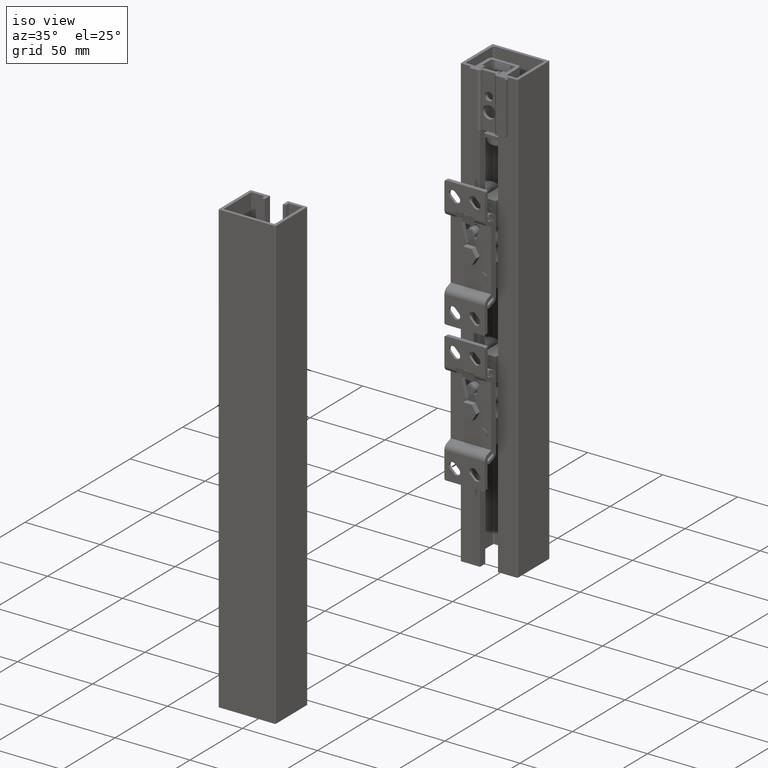
[diagram: clean part render]
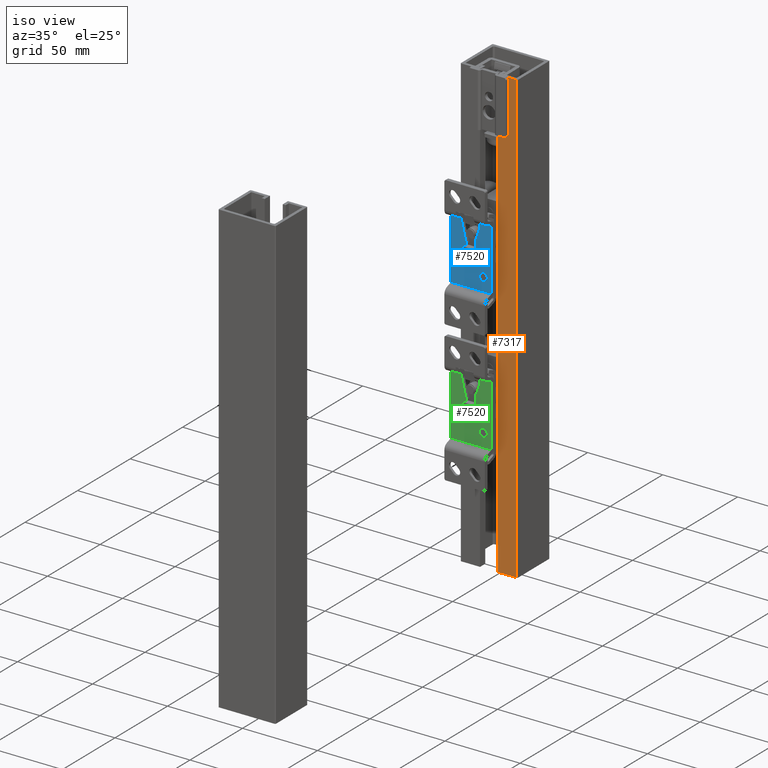
[diagram: same view with three faces highlighted in distinct colors, each labeled with its STEP entity id]
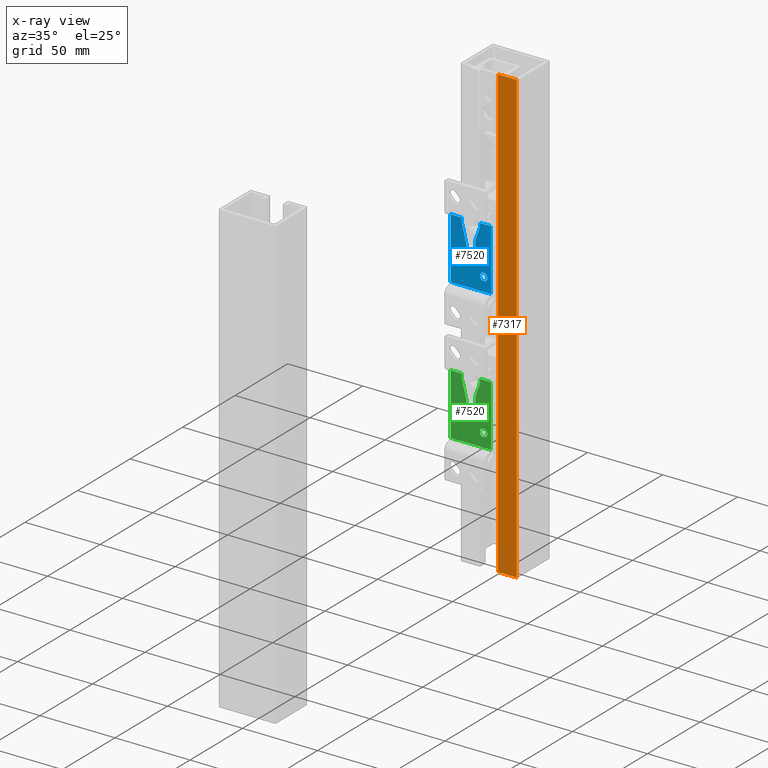
[diagram: x-ray of the same camera — body ghosted, the three highlighted faces saturated]
A machine part, iso view with three faces highlighted in distinct colors.
The next image is the same camera in x-ray (body ghosted, the three faces saturated) — at least one of them is partly hidden behind the body in this view.
Their STEP definitions:

[orange] entity #7317 — the highlighted planar face has unit normal (0, -1, 0).
#301=PLANE('',#7786);
#557=FACE_OUTER_BOUND('',#998,.T.);
#998=EDGE_LOOP('',(#5138,#5139,#5140,#5141));
#1565=LINE('',#10891,#2252);
#1570=LINE('',#10903,#2257);
#1606=LINE('',#10986,#2293);
#1607=LINE('',#10987,#2294);
#2252=VECTOR('',#8590,300.);
#2257=VECTOR('',#8601,12.5);
#2293=VECTOR('',#8677,12.5);
#2294=VECTOR('',#8678,300.);
#3271=VERTEX_POINT('',#10888);
#3272=VERTEX_POINT('',#10890);
#3276=VERTEX_POINT('',#10902);
#3303=VERTEX_POINT('',#10985);
#4004=EDGE_CURVE('',#3271,#3272,#1565,.T.);
#4010=EDGE_CURVE('',#3272,#3276,#1570,.T.);
#4052=EDGE_CURVE('',#3303,#3271,#1606,.T.);
#4053=EDGE_CURVE('',#3276,#3303,#1607,.T.);
#5138=ORIENTED_EDGE('',*,*,#4004,.F.);
#5139=ORIENTED_EDGE('',*,*,#4052,.F.);
#5140=ORIENTED_EDGE('',*,*,#4053,.F.);
#5141=ORIENTED_EDGE('',*,*,#4010,.F.);
#7317=ADVANCED_FACE('',(#557),#301,.T.);
#7786=AXIS2_PLACEMENT_3D('',#10984,#8675,#8676);
#8590=DIRECTION('',(0.,0.,-1.));
#8601=DIRECTION('',(-1.,-5.12410626750073E-16,0.));
#8675=DIRECTION('center_axis',(5.12410626750073E-16,-1.,0.));
#8676=DIRECTION('ref_axis',(1.,5.32907051820075E-16,0.));
#8677=DIRECTION('',(1.,5.12410626750073E-16,0.));
#8678=DIRECTION('',(0.,0.,1.));
#10888=CARTESIAN_POINT('',(18.5,-15.25,150.));
#10890=CARTESIAN_POINT('',(18.5,-15.25,-150.));
#10891=CARTESIAN_POINT('',(18.5,-15.25,0.));
#10902=CARTESIAN_POINT('',(6.00000000000002,-15.25,-150.));
#10903=CARTESIAN_POINT('',(6.00000000000002,-15.25,-150.));
#10984=CARTESIAN_POINT('Origin',(6.00000000000002,-15.25,0.));
#10985=CARTESIAN_POINT('',(6.00000000000002,-15.25,150.));
#10986=CARTESIAN_POINT('',(6.00000000000002,-15.25,150.));
#10987=CARTESIAN_POINT('',(6.00000000000002,-15.25,0.));

[blue] entity #7520 — the highlighted planar face has unit normal (0, 1, -0).
#179=FACE_BOUND('',#1290,.T.);
#415=PLANE('',#8150);
#760=FACE_OUTER_BOUND('',#1289,.T.);
#1289=EDGE_LOOP('',(#5955,#5956,#5957,#5958,#5959,#5960,#5961,#5962,#5963,
#5964,#5965,#5966,#5967,#5968,#5969,#5970));
#1290=EDGE_LOOP('',(#5971));
#1790=LINE('',#11686,#2477);
#1794=LINE('',#11698,#2481);
#1810=LINE('',#11745,#2497);
#1813=LINE('',#11754,#2500);
#1815=LINE('',#11757,#2502);
#1816=LINE('',#11760,#2503);
#1835=LINE('',#11821,#2522);
#1838=LINE('',#11830,#2525);
#1857=LINE('',#11884,#2544);
#1866=LINE('',#11910,#2553);
#1867=LINE('',#11912,#2554);
#2477=VECTOR('',#9427,7.30095089312675);
#2481=VECTOR('',#9439,8.14353635223337);
#2497=VECTOR('',#9477,2.28384925728257);
#2500=VECTOR('',#9486,4.88447187191169);
#2502=VECTOR('',#9490,11.1382606206764);
#2503=VECTOR('',#9493,2.04291373760425);
#2522=VECTOR('',#9558,7.5);
#2525=VECTOR('',#9567,7.5);
#2544=VECTOR('',#9634,40.7987547707417);
#2553=VECTOR('',#9663,27.);
#2554=VECTOR('',#9666,40.7987547707417);
#3036=CIRCLE('',#8015,2.5);
#3062=CIRCLE('',#8068,5.);
#3063=CIRCLE('',#8071,5.);
#3068=CIRCLE('',#8079,5.);
#3073=CIRCLE('',#8086,5.);
#3078=CIRCLE('',#8096,3.);
#3470=VERTEX_POINT('',#11500);
#3533=VERTEX_POINT('',#11676);
#3534=VERTEX_POINT('',#11678);
#3536=VERTEX_POINT('',#11684);
#3537=VERTEX_POINT('',#11688);
#3540=VERTEX_POINT('',#11696);
#3552=VERTEX_POINT('',#11724);
#3553=VERTEX_POINT('',#11726);
#3560=VERTEX_POINT('',#11743);
#3561=VERTEX_POINT('',#11747);
#3562=VERTEX_POINT('',#11748);
#3563=VERTEX_POINT('',#11753);
#3564=VERTEX_POINT('',#11759);
#3583=VERTEX_POINT('',#11820);
#3586=VERTEX_POINT('',#11828);
#3597=VERTEX_POINT('',#11882);
#3604=VERTEX_POINT('',#11908);
#4266=EDGE_CURVE('',#3470,#3470,#3036,.T.);
#4353=EDGE_CURVE('',#3533,#3534,#3062,.T.);
#4357=EDGE_CURVE('',#3533,#3536,#1790,.T.);
#4358=EDGE_CURVE('',#3537,#3536,#3063,.T.);
#4363=EDGE_CURVE('',#3537,#3540,#1794,.T.);
#4377=EDGE_CURVE('',#3552,#3553,#3068,.T.);
#4387=EDGE_CURVE('',#3552,#3560,#1810,.T.);
#4388=EDGE_CURVE('',#3561,#3562,#3073,.T.);
#4391=EDGE_CURVE('',#3563,#3562,#1813,.T.);
#4393=EDGE_CURVE('',#3561,#3553,#1815,.T.);
#4394=EDGE_CURVE('',#3564,#3534,#1816,.T.);
#4404=EDGE_CURVE('',#3540,#3563,#3078,.T.);
#4426=EDGE_CURVE('',#3583,#3564,#1835,.T.);
#4431=EDGE_CURVE('',#3560,#3586,#1838,.T.);
#4458=EDGE_CURVE('',#3597,#3586,#1857,.T.);
#4471=EDGE_CURVE('',#3597,#3604,#1866,.T.);
#4472=EDGE_CURVE('',#3583,#3604,#1867,.T.);
#5955=ORIENTED_EDGE('',*,*,#4358,.F.);
#5956=ORIENTED_EDGE('',*,*,#4363,.T.);
#5957=ORIENTED_EDGE('',*,*,#4404,.T.);
#5958=ORIENTED_EDGE('',*,*,#4391,.T.);
#5959=ORIENTED_EDGE('',*,*,#4388,.F.);
#5960=ORIENTED_EDGE('',*,*,#4393,.T.);
#5961=ORIENTED_EDGE('',*,*,#4377,.F.);
#5962=ORIENTED_EDGE('',*,*,#4387,.T.);
#5963=ORIENTED_EDGE('',*,*,#4431,.T.);
#5964=ORIENTED_EDGE('',*,*,#4458,.F.);
#5965=ORIENTED_EDGE('',*,*,#4471,.T.);
#5966=ORIENTED_EDGE('',*,*,#4472,.F.);
#5967=ORIENTED_EDGE('',*,*,#4426,.T.);
#5968=ORIENTED_EDGE('',*,*,#4394,.T.);
#5969=ORIENTED_EDGE('',*,*,#4353,.F.);
#5970=ORIENTED_EDGE('',*,*,#4357,.T.);
#5971=ORIENTED_EDGE('',*,*,#4266,.T.);
#7520=ADVANCED_FACE('',(#760,#179),#415,.F.);
#8015=AXIS2_PLACEMENT_3D('',#11501,#9253,#9254);
#8068=AXIS2_PLACEMENT_3D('',#11679,#9420,#9421);
#8071=AXIS2_PLACEMENT_3D('',#11689,#9430,#9431);
#8079=AXIS2_PLACEMENT_3D('',#11727,#9460,#9461);
#8086=AXIS2_PLACEMENT_3D('',#11749,#9480,#9481);
#8096=AXIS2_PLACEMENT_3D('',#11778,#9511,#9512);
#8150=AXIS2_PLACEMENT_3D('',#11911,#9664,#9665);
#9253=DIRECTION('center_axis',(-1.72701359386135E-16,1.,0.));
#9254=DIRECTION('ref_axis',(1.,0.,0.));
#9420=DIRECTION('center_axis',(1.72701359386135E-16,-1.,0.));
#9421=DIRECTION('ref_axis',(-0.168833744282815,0.,-0.985644543834868));
#9427=DIRECTION('',(-0.94299033358289,-1.6285571249775E-16,0.332820117735137));
#9430=DIRECTION('center_axis',(-1.72701359386135E-16,1.,0.));
#9431=DIRECTION('ref_axis',(0.168833744282816,0.,0.985644543834868));
#9439=DIRECTION('',(-1.,-1.72701359386135E-16,4.93432455388959E-16));
#9460=DIRECTION('center_axis',(1.72701359386135E-16,-1.,0.));
#9461=DIRECTION('ref_axis',(-0.122183263695704,0.,0.992507556682903));
#9477=DIRECTION('',(1.,1.72701359386135E-16,-8.63506796930677E-16));
#9480=DIRECTION('center_axis',(-1.72701359386135E-16,1.,0.));
#9481=DIRECTION('ref_axis',(0.122183263695705,0.,-0.992507556682903));
#9486=DIRECTION('',(1.,1.72701359386135E-16,0.));
#9490=DIRECTION('',(0.970142500145332,1.67544928573363E-16,0.242535625036333));
#9493=DIRECTION('',(-1.,-1.72701359386135E-16,-7.40148683083438E-16));
#9511=DIRECTION('center_axis',(-1.72701359386135E-16,1.,0.));
#9512=DIRECTION('ref_axis',(1.,1.72701359386135E-16,0.));
#9558=DIRECTION('',(0.,0.,1.));
#9567=DIRECTION('',(0.,0.,1.));
#9634=DIRECTION('',(1.,1.72701359386135E-16,0.));
#9663=DIRECTION('',(0.,0.,-1.));
#9664=DIRECTION('center_axis',(-1.72701359386135E-16,1.,0.));
#9665=DIRECTION('ref_axis',(-1.,-1.77635683940025E-16,0.));
#9666=DIRECTION('',(-1.,-1.72701359386135E-16,0.));
#11500=CARTESIAN_POINT('',(-8.94639949953024,5.9,-8.5));
#11501=CARTESIAN_POINT('Origin',(-11.4463994995302,5.90000000000001,-8.5));
#11676=CARTESIAN_POINT('',(16.6923630590909,5.90000000000001,-5.71495166791445));
#11678=CARTESIAN_POINT('',(18.3564636477666,5.90000000000001,-6.));
#11679=CARTESIAN_POINT('Origin',(18.3564636477666,5.90000000000001,-1.));
#11684=CARTESIAN_POINT('',(9.80763694090905,5.90000000000001,-3.28504833208555));
#11686=CARTESIAN_POINT('',(14.5315384615385,5.90000000000001,-4.95230769230769));
#11688=CARTESIAN_POINT('',(8.14353635223337,5.90000000000001,-3.));
#11689=CARTESIAN_POINT('Origin',(8.14353635223336,5.90000000000001,-8.));
#11696=CARTESIAN_POINT('',(-1.03127383176292E-15,5.90000000000001,-3.));
#11698=CARTESIAN_POINT('',(11.25,5.90000000000001,-3.));
#11724=CARTESIAN_POINT('',(18.1155281280883,5.90000000000001,6.));
#11726=CARTESIAN_POINT('',(16.9028500029066,5.90000000000001,5.85071250072666));
#11727=CARTESIAN_POINT('Origin',(18.1155281280883,5.90000000000001,1.));
#11743=CARTESIAN_POINT('',(20.3993773853709,5.90000000000001,6.));
#11745=CARTESIAN_POINT('',(24.5,5.90000000000001,6.));
#11747=CARTESIAN_POINT('',(6.09714999709335,5.90000000000001,3.14928749927334));
#11748=CARTESIAN_POINT('',(4.88447187191169,5.90000000000001,3.));
#11749=CARTESIAN_POINT('Origin',(4.88447187191169,5.90000000000001,8.));
#11753=CARTESIAN_POINT('',(4.49023534403952E-16,5.90000000000001,3.));
#11754=CARTESIAN_POINT('',(14.,5.90000000000001,3.));
#11757=CARTESIAN_POINT('',(19.1470588235294,5.90000000000001,6.41176470588236));
#11759=CARTESIAN_POINT('',(20.3993773853709,5.90000000000001,-6.));
#11760=CARTESIAN_POINT('',(20.,5.90000000000001,-6.));
#11778=CARTESIAN_POINT('Origin',(4.49023534403952E-16,5.90000000000001,
0.));
#11820=CARTESIAN_POINT('',(20.3993773853709,5.90000000000001,-13.5));
#11821=CARTESIAN_POINT('',(20.3993773853709,5.90000000000001,0.));
#11828=CARTESIAN_POINT('',(20.3993773853709,5.90000000000001,13.5));
#11830=CARTESIAN_POINT('',(20.3993773853709,5.90000000000001,0.));
#11882=CARTESIAN_POINT('',(-20.3993773853709,5.9,13.5));
#11884=CARTESIAN_POINT('',(11.25,5.90000000000001,13.5));
#11908=CARTESIAN_POINT('',(-20.3993773853709,5.9,-13.5));
#11910=CARTESIAN_POINT('',(-20.3993773853709,5.9,0.));
#11911=CARTESIAN_POINT('Origin',(22.5,5.90000000000001,0.));
#11912=CARTESIAN_POINT('',(11.25,5.90000000000001,-13.5));

[green] entity #7520 — the highlighted planar face has unit normal (0, 1, -0).
#179=FACE_BOUND('',#1290,.T.);
#415=PLANE('',#8150);
#760=FACE_OUTER_BOUND('',#1289,.T.);
#1289=EDGE_LOOP('',(#5955,#5956,#5957,#5958,#5959,#5960,#5961,#5962,#5963,
#5964,#5965,#5966,#5967,#5968,#5969,#5970));
#1290=EDGE_LOOP('',(#5971));
#1790=LINE('',#11686,#2477);
#1794=LINE('',#11698,#2481);
#1810=LINE('',#11745,#2497);
#1813=LINE('',#11754,#2500);
#1815=LINE('',#11757,#2502);
#1816=LINE('',#11760,#2503);
#1835=LINE('',#11821,#2522);
#1838=LINE('',#11830,#2525);
#1857=LINE('',#11884,#2544);
#1866=LINE('',#11910,#2553);
#1867=LINE('',#11912,#2554);
#2477=VECTOR('',#9427,7.30095089312675);
#2481=VECTOR('',#9439,8.14353635223337);
#2497=VECTOR('',#9477,2.28384925728257);
#2500=VECTOR('',#9486,4.88447187191169);
#2502=VECTOR('',#9490,11.1382606206764);
#2503=VECTOR('',#9493,2.04291373760425);
#2522=VECTOR('',#9558,7.5);
#2525=VECTOR('',#9567,7.5);
#2544=VECTOR('',#9634,40.7987547707417);
#2553=VECTOR('',#9663,27.);
#2554=VECTOR('',#9666,40.7987547707417);
#3036=CIRCLE('',#8015,2.5);
#3062=CIRCLE('',#8068,5.);
#3063=CIRCLE('',#8071,5.);
#3068=CIRCLE('',#8079,5.);
#3073=CIRCLE('',#8086,5.);
#3078=CIRCLE('',#8096,3.);
#3470=VERTEX_POINT('',#11500);
#3533=VERTEX_POINT('',#11676);
#3534=VERTEX_POINT('',#11678);
#3536=VERTEX_POINT('',#11684);
#3537=VERTEX_POINT('',#11688);
#3540=VERTEX_POINT('',#11696);
#3552=VERTEX_POINT('',#11724);
#3553=VERTEX_POINT('',#11726);
#3560=VERTEX_POINT('',#11743);
#3561=VERTEX_POINT('',#11747);
#3562=VERTEX_POINT('',#11748);
#3563=VERTEX_POINT('',#11753);
#3564=VERTEX_POINT('',#11759);
#3583=VERTEX_POINT('',#11820);
#3586=VERTEX_POINT('',#11828);
#3597=VERTEX_POINT('',#11882);
#3604=VERTEX_POINT('',#11908);
#4266=EDGE_CURVE('',#3470,#3470,#3036,.T.);
#4353=EDGE_CURVE('',#3533,#3534,#3062,.T.);
#4357=EDGE_CURVE('',#3533,#3536,#1790,.T.);
#4358=EDGE_CURVE('',#3537,#3536,#3063,.T.);
#4363=EDGE_CURVE('',#3537,#3540,#1794,.T.);
#4377=EDGE_CURVE('',#3552,#3553,#3068,.T.);
#4387=EDGE_CURVE('',#3552,#3560,#1810,.T.);
#4388=EDGE_CURVE('',#3561,#3562,#3073,.T.);
#4391=EDGE_CURVE('',#3563,#3562,#1813,.T.);
#4393=EDGE_CURVE('',#3561,#3553,#1815,.T.);
#4394=EDGE_CURVE('',#3564,#3534,#1816,.T.);
#4404=EDGE_CURVE('',#3540,#3563,#3078,.T.);
#4426=EDGE_CURVE('',#3583,#3564,#1835,.T.);
#4431=EDGE_CURVE('',#3560,#3586,#1838,.T.);
#4458=EDGE_CURVE('',#3597,#3586,#1857,.T.);
#4471=EDGE_CURVE('',#3597,#3604,#1866,.T.);
#4472=EDGE_CURVE('',#3583,#3604,#1867,.T.);
#5955=ORIENTED_EDGE('',*,*,#4358,.F.);
#5956=ORIENTED_EDGE('',*,*,#4363,.T.);
#5957=ORIENTED_EDGE('',*,*,#4404,.T.);
#5958=ORIENTED_EDGE('',*,*,#4391,.T.);
#5959=ORIENTED_EDGE('',*,*,#4388,.F.);
#5960=ORIENTED_EDGE('',*,*,#4393,.T.);
#5961=ORIENTED_EDGE('',*,*,#4377,.F.);
#5962=ORIENTED_EDGE('',*,*,#4387,.T.);
#5963=ORIENTED_EDGE('',*,*,#4431,.T.);
#5964=ORIENTED_EDGE('',*,*,#4458,.F.);
#5965=ORIENTED_EDGE('',*,*,#4471,.T.);
#5966=ORIENTED_EDGE('',*,*,#4472,.F.);
#5967=ORIENTED_EDGE('',*,*,#4426,.T.);
#5968=ORIENTED_EDGE('',*,*,#4394,.T.);
#5969=ORIENTED_EDGE('',*,*,#4353,.F.);
#5970=ORIENTED_EDGE('',*,*,#4357,.T.);
#5971=ORIENTED_EDGE('',*,*,#4266,.T.);
#7520=ADVANCED_FACE('',(#760,#179),#415,.F.);
#8015=AXIS2_PLACEMENT_3D('',#11501,#9253,#9254);
#8068=AXIS2_PLACEMENT_3D('',#11679,#9420,#9421);
#8071=AXIS2_PLACEMENT_3D('',#11689,#9430,#9431);
#8079=AXIS2_PLACEMENT_3D('',#11727,#9460,#9461);
#8086=AXIS2_PLACEMENT_3D('',#11749,#9480,#9481);
#8096=AXIS2_PLACEMENT_3D('',#11778,#9511,#9512);
#8150=AXIS2_PLACEMENT_3D('',#11911,#9664,#9665);
#9253=DIRECTION('center_axis',(-1.72701359386135E-16,1.,0.));
#9254=DIRECTION('ref_axis',(1.,0.,0.));
#9420=DIRECTION('center_axis',(1.72701359386135E-16,-1.,0.));
#9421=DIRECTION('ref_axis',(-0.168833744282815,0.,-0.985644543834868));
#9427=DIRECTION('',(-0.94299033358289,-1.6285571249775E-16,0.332820117735137));
#9430=DIRECTION('center_axis',(-1.72701359386135E-16,1.,0.));
#9431=DIRECTION('ref_axis',(0.168833744282816,0.,0.985644543834868));
#9439=DIRECTION('',(-1.,-1.72701359386135E-16,4.93432455388959E-16));
#9460=DIRECTION('center_axis',(1.72701359386135E-16,-1.,0.));
#9461=DIRECTION('ref_axis',(-0.122183263695704,0.,0.992507556682903));
#9477=DIRECTION('',(1.,1.72701359386135E-16,-8.63506796930677E-16));
#9480=DIRECTION('center_axis',(-1.72701359386135E-16,1.,0.));
#9481=DIRECTION('ref_axis',(0.122183263695705,0.,-0.992507556682903));
#9486=DIRECTION('',(1.,1.72701359386135E-16,0.));
#9490=DIRECTION('',(0.970142500145332,1.67544928573363E-16,0.242535625036333));
#9493=DIRECTION('',(-1.,-1.72701359386135E-16,-7.40148683083438E-16));
#9511=DIRECTION('center_axis',(-1.72701359386135E-16,1.,0.));
#9512=DIRECTION('ref_axis',(1.,1.72701359386135E-16,0.));
#9558=DIRECTION('',(0.,0.,1.));
#9567=DIRECTION('',(0.,0.,1.));
#9634=DIRECTION('',(1.,1.72701359386135E-16,0.));
#9663=DIRECTION('',(0.,0.,-1.));
#9664=DIRECTION('center_axis',(-1.72701359386135E-16,1.,0.));
#9665=DIRECTION('ref_axis',(-1.,-1.77635683940025E-16,0.));
#9666=DIRECTION('',(-1.,-1.72701359386135E-16,0.));
#11500=CARTESIAN_POINT('',(-8.94639949953024,5.9,-8.5));
#11501=CARTESIAN_POINT('Origin',(-11.4463994995302,5.90000000000001,-8.5));
#11676=CARTESIAN_POINT('',(16.6923630590909,5.90000000000001,-5.71495166791445));
#11678=CARTESIAN_POINT('',(18.3564636477666,5.90000000000001,-6.));
#11679=CARTESIAN_POINT('Origin',(18.3564636477666,5.90000000000001,-1.));
#11684=CARTESIAN_POINT('',(9.80763694090905,5.90000000000001,-3.28504833208555));
#11686=CARTESIAN_POINT('',(14.5315384615385,5.90000000000001,-4.95230769230769));
#11688=CARTESIAN_POINT('',(8.14353635223337,5.90000000000001,-3.));
#11689=CARTESIAN_POINT('Origin',(8.14353635223336,5.90000000000001,-8.));
#11696=CARTESIAN_POINT('',(-1.03127383176292E-15,5.90000000000001,-3.));
#11698=CARTESIAN_POINT('',(11.25,5.90000000000001,-3.));
#11724=CARTESIAN_POINT('',(18.1155281280883,5.90000000000001,6.));
#11726=CARTESIAN_POINT('',(16.9028500029066,5.90000000000001,5.85071250072666));
#11727=CARTESIAN_POINT('Origin',(18.1155281280883,5.90000000000001,1.));
#11743=CARTESIAN_POINT('',(20.3993773853709,5.90000000000001,6.));
#11745=CARTESIAN_POINT('',(24.5,5.90000000000001,6.));
#11747=CARTESIAN_POINT('',(6.09714999709335,5.90000000000001,3.14928749927334));
#11748=CARTESIAN_POINT('',(4.88447187191169,5.90000000000001,3.));
#11749=CARTESIAN_POINT('Origin',(4.88447187191169,5.90000000000001,8.));
#11753=CARTESIAN_POINT('',(4.49023534403952E-16,5.90000000000001,3.));
#11754=CARTESIAN_POINT('',(14.,5.90000000000001,3.));
#11757=CARTESIAN_POINT('',(19.1470588235294,5.90000000000001,6.41176470588236));
#11759=CARTESIAN_POINT('',(20.3993773853709,5.90000000000001,-6.));
#11760=CARTESIAN_POINT('',(20.,5.90000000000001,-6.));
#11778=CARTESIAN_POINT('Origin',(4.49023534403952E-16,5.90000000000001,
0.));
#11820=CARTESIAN_POINT('',(20.3993773853709,5.90000000000001,-13.5));
#11821=CARTESIAN_POINT('',(20.3993773853709,5.90000000000001,0.));
#11828=CARTESIAN_POINT('',(20.3993773853709,5.90000000000001,13.5));
#11830=CARTESIAN_POINT('',(20.3993773853709,5.90000000000001,0.));
#11882=CARTESIAN_POINT('',(-20.3993773853709,5.9,13.5));
#11884=CARTESIAN_POINT('',(11.25,5.90000000000001,13.5));
#11908=CARTESIAN_POINT('',(-20.3993773853709,5.9,-13.5));
#11910=CARTESIAN_POINT('',(-20.3993773853709,5.9,0.));
#11911=CARTESIAN_POINT('Origin',(22.5,5.90000000000001,0.));
#11912=CARTESIAN_POINT('',(11.25,5.90000000000001,-13.5));